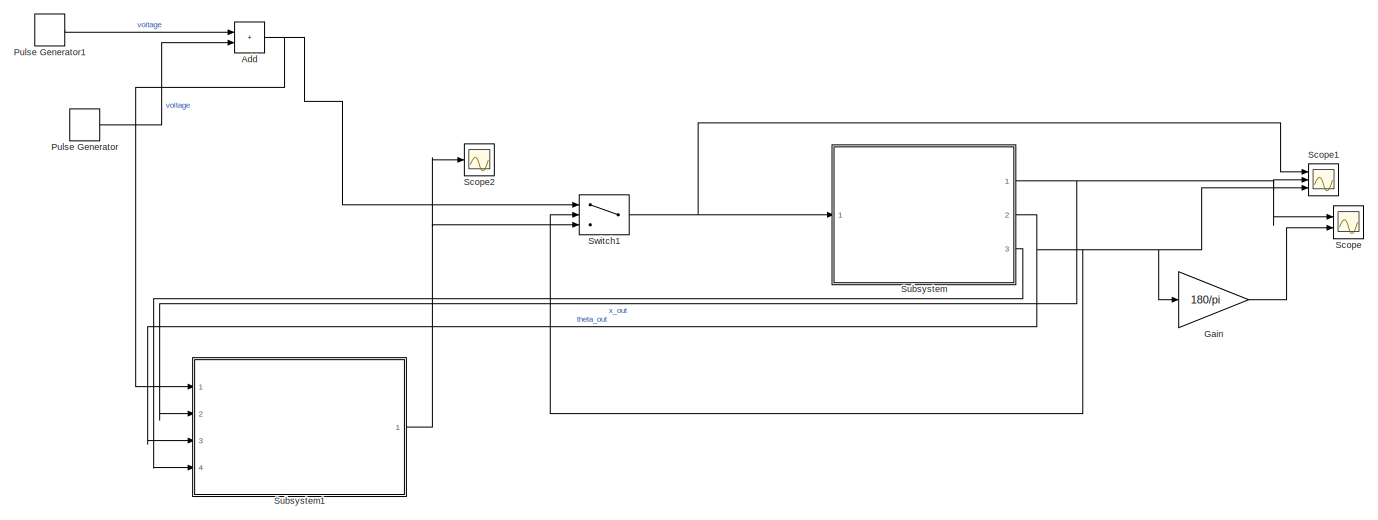
[diagram: root canvas - part 1/2, left side, full height]
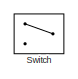
[diagram: root canvas - part 2/2, middle right region]
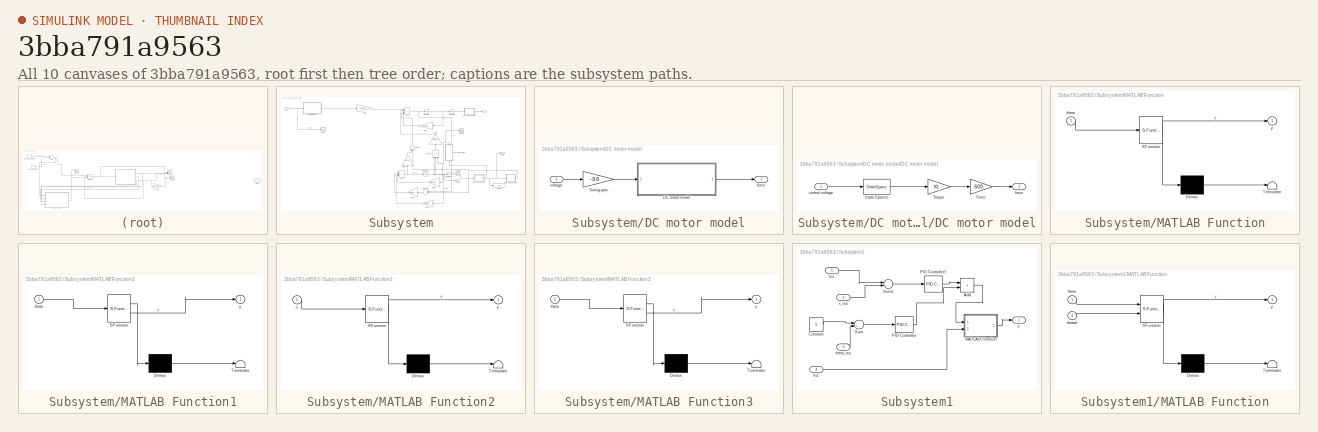
[diagram: thumbnail index - all 10 canvases of the model, root first then tree order]
MODEL slx_3bba791a9563
KIND model
CONFIG AbsTol = auto
CONFIG EnableMultiTasking = off
CONFIG FixedStep = auto
CONFIG MaxStep = auto
CONFIG MinStep = auto
CONFIG RelTol = 1e-3
CONFIG SampleTimeConstraint = Unconstrained
CONFIG Solver = VariableStepAuto
CONFIG SolverName = VariableStepAuto
CONFIG StartTime = 0.0
CONFIG StopTime = 10
BLOCK [Sum] Add
  IconShape = rectangular
  Ports = [2, 1]
BLOCK [Gain] Gain
  Gain = 180/pi
BLOCK [DiscretePulseGenerator] Pulse Generator
  Amplitude = 14.5
  Period = 35
  Ports = [0, 1]
  PulseType = Time based
  PulseWidth = 0.1245
  SampleTime = 2
BLOCK [DiscretePulseGenerator] Pulse Generator1
  Amplitude = -14.5
  Period = 35
  PhaseDelay = 1.5
  Ports = [0, 1]
  PulseType = Time based
  PulseWidth = 0.1245
  SampleTime = 2
BLOCK [Scope] Scope
  Floating = off
  NumInputPorts = 2
  Ports = [2]
  ScopeSpecificationString = Simulink.scopes.TimeScopeBlockCfg('CurrentConfiguration', extmgr.ConfigurationSet(extmgr.Configuration('Core','General UI',true),extmgr.Configuration('Core','Source UI',true),extmgr.Configuration('Sources','WiredSimulink',true),extmgr.Configuration('Visuals','Time Domain',true,'SerializedDisplays',{struct('MinYLimReal','-0.3375','MaxYLimReal','0.0375','YLabelReal','','MinYLimMag','0.00000','MaxYLi...<+2115ch>
BLOCK [Scope] Scope1
  Floating = off
  NumInputPorts = 3
  Ports = [3]
  ScopeSpecificationString = Simulink.scopes.TimeScopeBlockCfg('CurrentConfiguration', extmgr.ConfigurationSet(extmgr.Configuration('Core','General UI',true),extmgr.Configuration('Core','Source UI',true),extmgr.Configuration('Sources','WiredSimulink',true,'DataLoggingVariableName','ScopeData2'),extmgr.Configuration('Visuals','Time Domain',true,'SerializedDisplays',{struct('MinYLimReal','-2483.62329','MaxYLimReal','22349.60963...<+1539ch>
BLOCK [Scope] Scope2
  Floating = off
  NumInputPorts = 1
  Ports = [1]
  ScopeSpecificationString = Simulink.scopes.TimeScopeBlockCfg('CurrentConfiguration', extmgr.ConfigurationSet(extmgr.Configuration('Core','General UI',true),extmgr.Configuration('Core','Source UI',true),extmgr.Configuration('Sources','WiredSimulink',true,'DataLoggingVariableName','ScopeData2'),extmgr.Configuration('Visuals','Time Domain',true,'SerializedDisplays',{struct('MinYLimReal','-71194.22995','MaxYLimReal','640748.069...<+1534ch>
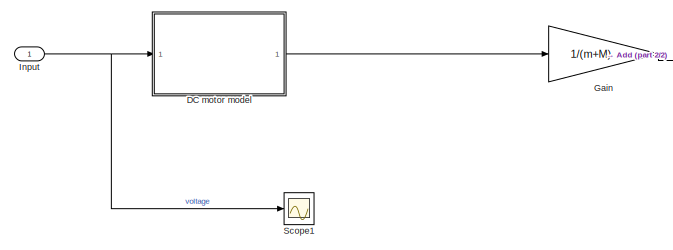
[diagram: Subsystem - part 1/2, top left region]
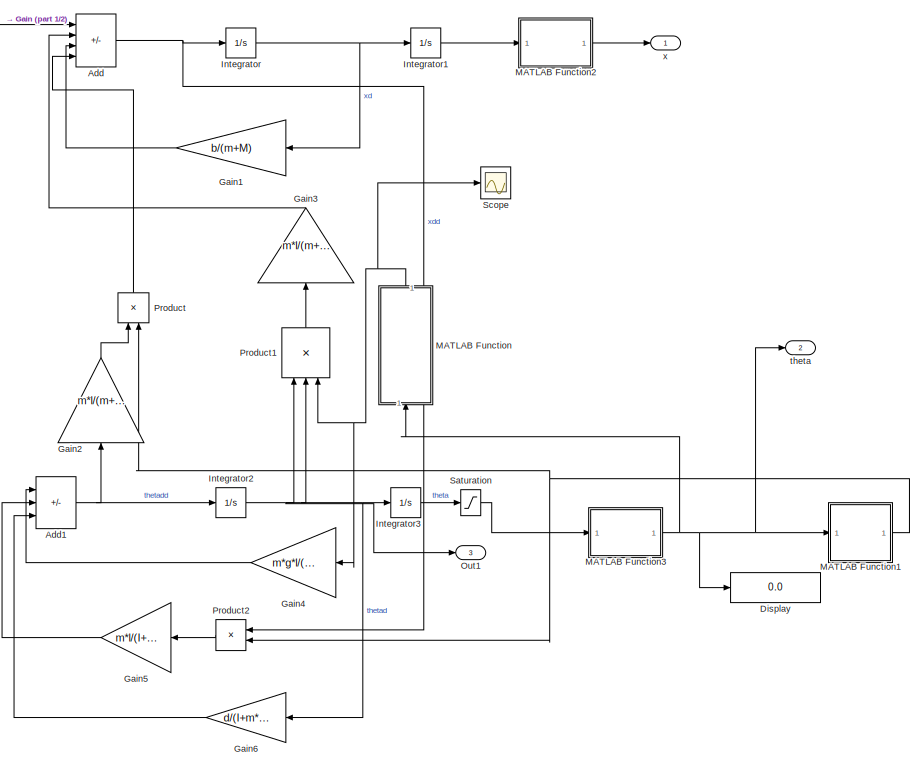
[diagram: Subsystem - part 2/2, right side, full height]
BLOCK [SubSystem] Subsystem
  Ports = [1, 3]
BLOCK [Sum] Subsystem/Add
  IconShape = rectangular
  Inputs = ++--
  Ports = [4, 1]
BLOCK [Sum] Subsystem/Add1
  IconShape = rectangular
  Inputs = +--
  Ports = [3, 1]
BLOCK [SubSystem] Subsystem/DC motor model
  Ports = [1, 1]
BLOCK [SubSystem] Subsystem/DC motor model/DC motor model
  Ports = [1, 1]
BLOCK [Gain] Subsystem/DC motor model/DC motor model/Force
  Gain = 600
BLOCK [StateSpace] Subsystem/DC motor model/DC motor model/State-Space1
  A = [-d/J Kt/J;-Kb/L -R/L]
  B = [0; 1/L]
  C = [0 1]
  D = 0
  InitialCondition = 0
  Ports = [1, 1]
BLOCK [Gain] Subsystem/DC motor model/DC motor model/Torque
  Gain = Kt
BLOCK [Inport] Subsystem/DC motor model/DC motor model/control voltage
BLOCK [Outport] Subsystem/DC motor model/DC motor model/force
BLOCK [Gain] Subsystem/DC motor model/Tuning gain
  Gain = -9.6
BLOCK [Outport] Subsystem/DC motor model/force
BLOCK [Inport] Subsystem/DC motor model/voltage
BLOCK [Display] Subsystem/Display
  Decimation = 1
  Ports = [1]
BLOCK [Gain] Subsystem/Gain
  Gain = 1/(m+M)
BLOCK [Gain] Subsystem/Gain1
  Gain = b/(m+M)
BLOCK [Gain] Subsystem/Gain2
  Gain = m*l/(m+M)
BLOCK [Gain] Subsystem/Gain3
  Gain = m*l/(m+M)
BLOCK [Gain] Subsystem/Gain4
  Gain = m*g*l/(I+m*l*l)
BLOCK [Gain] Subsystem/Gain5
  Gain = m*l/(I+m*l*l)
BLOCK [Gain] Subsystem/Gain6
  Gain = d/(I+m*l*l)
BLOCK [Inport] Subsystem/Input
BLOCK [Integrator] Subsystem/Integrator
  Ports = [1, 1]
BLOCK [Integrator] Subsystem/Integrator1
  Ports = [1, 1]
BLOCK [Integrator] Subsystem/Integrator2
  Ports = [1, 1]
BLOCK [Integrator] Subsystem/Integrator3
  InitialCondition = pi
  Ports = [1, 1]
BLOCK [SubSystem] Subsystem/MATLAB Function
  ErrorFcn = Stateflow.Translate.translate
  PermitHierarchicalResolution = ExplicitOnly
  Ports = [1, 1]
  SFBlockType = MATLAB Function
  TreatAsAtomicUnit = on
BLOCK [Demux] Subsystem/MATLAB Function/ Demux 
  Outputs = 1
  Ports = [1, 1]
BLOCK [S-Function] Subsystem/MATLAB Function/ SFunction 
  EnableBusSupport = on
  FunctionName = sf_sfun
  PortCounts = [1 2]
  Ports = [1, 2]
  SFcnIsStateOwnerBlock = off
  SFunctionDeploymentMode = off
  Tag = Stateflow S-Function A2_22AE30019 3
BLOCK [Terminator] Subsystem/MATLAB Function/ Terminator 
BLOCK [Inport] Subsystem/MATLAB Function/theta
BLOCK [Outport] Subsystem/MATLAB Function/y
BLOCK [SubSystem] Subsystem/MATLAB Function1
  ErrorFcn = Stateflow.Translate.translate
  PermitHierarchicalResolution = ExplicitOnly
  Ports = [1, 1]
  SFBlockType = MATLAB Function
  TreatAsAtomicUnit = on
BLOCK [Demux] Subsystem/MATLAB Function1/ Demux 
  Outputs = 1
  Ports = [1, 1]
BLOCK [S-Function] Subsystem/MATLAB Function1/ SFunction 
  EnableBusSupport = on
  FunctionName = sf_sfun
  PortCounts = [1 2]
  Ports = [1, 2]
  SFcnIsStateOwnerBlock = off
  SFunctionDeploymentMode = off
  Tag = Stateflow S-Function A2_22AE30019 4
BLOCK [Terminator] Subsystem/MATLAB Function1/ Terminator 
BLOCK [Inport] Subsystem/MATLAB Function1/theta
BLOCK [Outport] Subsystem/MATLAB Function1/y
BLOCK [SubSystem] Subsystem/MATLAB Function2
  ErrorFcn = Stateflow.Translate.translate
  PermitHierarchicalResolution = ExplicitOnly
  Ports = [1, 1]
  SFBlockType = MATLAB Function
  TreatAsAtomicUnit = on
BLOCK [Demux] Subsystem/MATLAB Function2/ Demux 
  Outputs = 1
  Ports = [1, 1]
BLOCK [S-Function] Subsystem/MATLAB Function2/ SFunction 
  EnableBusSupport = on
  FunctionName = sf_sfun
  PortCounts = [1 2]
  Ports = [1, 2]
  SFcnIsStateOwnerBlock = off
  SFunctionDeploymentMode = off
  Tag = Stateflow S-Function A2_22AE30019 1
BLOCK [Terminator] Subsystem/MATLAB Function2/ Terminator 
BLOCK [Inport] Subsystem/MATLAB Function2/u
BLOCK [Outport] Subsystem/MATLAB Function2/y
BLOCK [SubSystem] Subsystem/MATLAB Function3
  ErrorFcn = Stateflow.Translate.translate
  PermitHierarchicalResolution = ExplicitOnly
  Ports = [1, 1]
  SFBlockType = MATLAB Function
  TreatAsAtomicUnit = on
BLOCK [Demux] Subsystem/MATLAB Function3/ Demux 
  Outputs = 1
  Ports = [1, 1]
BLOCK [S-Function] Subsystem/MATLAB Function3/ SFunction 
  EnableBusSupport = on
  FunctionName = sf_sfun
  PortCounts = [1 2]
  Ports = [1, 2]
  SFcnIsStateOwnerBlock = off
  SFunctionDeploymentMode = off
  Tag = Stateflow S-Function A2_22AE30019 5
BLOCK [Terminator] Subsystem/MATLAB Function3/ Terminator 
BLOCK [Inport] Subsystem/MATLAB Function3/theta
BLOCK [Outport] Subsystem/MATLAB Function3/y
BLOCK [Outport] Subsystem/Out1
  Port = 3
BLOCK [Product] Subsystem/Product
  Ports = [2, 1]
BLOCK [Product] Subsystem/Product1
  Inputs = 3
  Ports = [3, 1]
BLOCK [Product] Subsystem/Product2
  Ports = [2, 1]
BLOCK [Saturate] Subsystem/Saturation
  LowerLimit = 0
  UpperLimit = 2*pi
BLOCK [Scope] Subsystem/Scope
  Floating = off
  NumInputPorts = 1
  Ports = [1]
  ScopeSpecificationString = Simulink.scopes.TimeScopeBlockCfg('CurrentConfiguration', extmgr.ConfigurationSet(extmgr.Configuration('Core','General UI',true),extmgr.Configuration('Core','Source UI',true),extmgr.Configuration('Sources','WiredSimulink',true,'DataLoggingVariableName','ScopeData3'),extmgr.Configuration('Visuals','Time Domain',true,'SerializedDisplays',{struct('MinYLimReal','-1.24726','MaxYLimReal','1.23127','YLab...<+1505ch>
BLOCK [Scope] Subsystem/Scope1
  Floating = off
  NumInputPorts = 1
  Ports = [1]
  ScopeSpecificationString = Simulink.scopes.TimeScopeBlockCfg('CurrentConfiguration', extmgr.ConfigurationSet(extmgr.Configuration('Core','General UI',true),extmgr.Configuration('Core','Source UI',true),extmgr.Configuration('Sources','WiredSimulink',true,'DataLoggingVariableName','ScopeData1'),extmgr.Configuration('Visuals','Time Domain',true,'SerializedDisplays',{struct('MinYLimReal','-3.90735','MaxYLimReal','35.6459','YLab...<+1497ch>
BLOCK [Outport] Subsystem/theta
  Port = 2
BLOCK [Outport] Subsystem/x
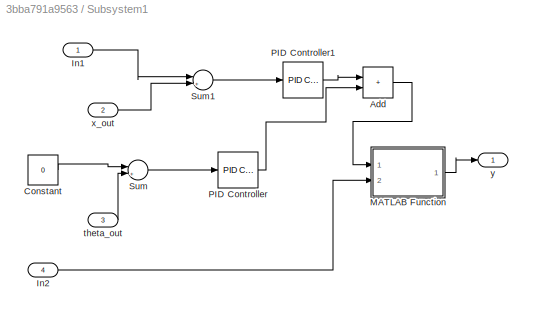
BLOCK [SubSystem] Subsystem1
  Ports = [4, 1]
BLOCK [Sum] Subsystem1/Add
  IconShape = rectangular
  Ports = [2, 1]
BLOCK [Constant] Subsystem1/Constant
  Value = 0
BLOCK [Inport] Subsystem1/In1
BLOCK [Inport] Subsystem1/In2
  Port = 4
BLOCK [SubSystem] Subsystem1/MATLAB Function
  ErrorFcn = Stateflow.Translate.translate
  PermitHierarchicalResolution = ExplicitOnly
  Ports = [2, 1]
  SFBlockType = MATLAB Function
  TreatAsAtomicUnit = on
BLOCK [Demux] Subsystem1/MATLAB Function/ Demux 
  Outputs = 1
  Ports = [1, 1]
BLOCK [S-Function] Subsystem1/MATLAB Function/ SFunction 
  EnableBusSupport = on
  FunctionName = sf_sfun
  PortCounts = [2 2]
  Ports = [2, 2]
  SFcnIsStateOwnerBlock = off
  SFunctionDeploymentMode = off
  Tag = Stateflow S-Function A2_22AE30019 2
BLOCK [Terminator] Subsystem1/MATLAB Function/ Terminator 
BLOCK [Inport] Subsystem1/MATLAB Function/theta
BLOCK [Inport] Subsystem1/MATLAB Function/thetad
  Port = 2
BLOCK [Outport] Subsystem1/MATLAB Function/y
BLOCK [Reference] Subsystem1/PID Controller  REF=simulink/Continuous/PID Controller
  Ports = [1, 1]
  SourceBlock = simulink/Continuous/PID Controller
  SourceType = PID 1dof
BLOCK [Reference] Subsystem1/PID Controller1  REF=simulink/Continuous/PID Controller
  Ports = [1, 1]
  SourceBlock = simulink/Continuous/PID Controller
  SourceType = PID 1dof
BLOCK [Sum] Subsystem1/Sum
  Inputs = |+-
  Ports = [2, 1]
BLOCK [Sum] Subsystem1/Sum1
  Inputs = |+-
  Ports = [2, 1]
BLOCK [Inport] Subsystem1/theta_out
  Port = 3
BLOCK [Inport] Subsystem1/x_out
  Port = 2
BLOCK [Outport] Subsystem1/y
BLOCK [Switch] Switch
  Criteria = u2 > Threshold
  InputSameDT = off
  SaturateOnIntegerOverflow = off
BLOCK [Switch] Switch1
  Criteria = u2 > Threshold
  InputSameDT = off
  SaturateOnIntegerOverflow = off
  Threshold = pi/18
NET Add:1 -> Subsystem1:1, Switch1:1
LINE Gain:1 -> Scope:2
LINE Pulse Generator1:1 -> Add:1
LINE Pulse Generator:1 -> Add:2
NET Subsystem/Add1:1 -> Subsystem/Gain2:1, Subsystem/Integrator2:1
NET Subsystem/Add:1 -> Subsystem/Integrator:1, Subsystem/Product2:1
LINE Subsystem/DC motor model/DC motor model/Force:1 -> Subsystem/DC motor model/DC motor model/force:1
LINE Subsystem/DC motor model/DC motor model/State-Space1:1 -> Subsystem/DC motor model/DC motor model/Torque:1
LINE Subsystem/DC motor model/DC motor model/Torque:1 -> Subsystem/DC motor model/DC motor model/Force:1
LINE Subsystem/DC motor model/DC motor model/control voltage:1 -> Subsystem/DC motor model/DC motor model/State-Space1:1
LINE Subsystem/DC motor model/DC motor model:1 -> Subsystem/DC motor model/force:1
LINE Subsystem/DC motor model/Tuning gain:1 -> Subsystem/DC motor model/DC motor model:1
LINE Subsystem/DC motor model/voltage:1 -> Subsystem/DC motor model/Tuning gain:1
LINE Subsystem/DC motor model:1 -> Subsystem/Gain:1
LINE Subsystem/Gain1:1 -> Subsystem/Add:3
LINE Subsystem/Gain2:1 -> Subsystem/Product:1
LINE Subsystem/Gain3:1 -> Subsystem/Add:2
LINE Subsystem/Gain4:1 -> Subsystem/Add1:1
LINE Subsystem/Gain5:1 -> Subsystem/Add1:2
LINE Subsystem/Gain6:1 -> Subsystem/Add1:3
LINE Subsystem/Gain:1 -> Subsystem/Add:1
NET Subsystem/Input:1 -> Subsystem/DC motor model:1, Subsystem/Scope1:1
LINE Subsystem/Integrator1:1 -> Subsystem/MATLAB Function2:1
NET Subsystem/Integrator2:1 -> Subsystem/Gain6:1, Subsystem/Integrator3:1, Subsystem/Out1:1, Subsystem/Product1:1, Subsystem/Product1:2
LINE Subsystem/Integrator3:1 -> Subsystem/Saturation:1
NET Subsystem/Integrator:1 -> Subsystem/Gain1:1, Subsystem/Integrator1:1
NET Subsystem/MATLAB Function1:1 -> Subsystem/Product2:2, Subsystem/Product:2
LINE Subsystem/MATLAB Function2:1 -> Subsystem/x:1
NET Subsystem/MATLAB Function3:1 -> Subsystem/Display:1, Subsystem/MATLAB Function1:1, Subsystem/MATLAB Function:1, Subsystem/theta:1
NET Subsystem/MATLAB Function:1 -> Subsystem/Gain4:1, Subsystem/Product1:3, Subsystem/Scope:1
LINE Subsystem/Product1:1 -> Subsystem/Gain3:1
LINE Subsystem/Product2:1 -> Subsystem/Gain5:1
LINE Subsystem/Product:1 -> Subsystem/Add:4
LINE Subsystem/Saturation:1 -> Subsystem/MATLAB Function3:1
LINE Subsystem1/Add:1 -> Subsystem1/MATLAB Function:1
LINE Subsystem1/Constant:1 -> Subsystem1/Sum:1
LINE Subsystem1/In1:1 -> Subsystem1/Sum1:1
LINE Subsystem1/In2:1 -> Subsystem1/MATLAB Function:2
LINE Subsystem1/MATLAB Function:1 -> Subsystem1/y:1
LINE Subsystem1/PID Controller1:1 -> Subsystem1/Add:1
LINE Subsystem1/PID Controller:1 -> Subsystem1/Add:2
LINE Subsystem1/Sum1:1 -> Subsystem1/PID Controller1:1
LINE Subsystem1/Sum:1 -> Subsystem1/PID Controller:1
LINE Subsystem1/theta_out:1 -> Subsystem1/Sum:2
LINE Subsystem1/x_out:1 -> Subsystem1/Sum1:2
NET Subsystem1:1 -> Scope2:1, Switch1:3
NET Subsystem:1 -> Scope1:2, Scope:1, Subsystem1:2
NET Subsystem:2 -> Gain:1, Scope1:3, Subsystem1:3, Switch1:2
LINE Subsystem:3 -> Subsystem1:4
NET Switch1:1 -> Scope1:1, Subsystem:1
note: NET lines group one-source signal fan-out (src -> all destinations, sorted); 1:1 wires keep LINE
CHART Subsystem/MATLAB Function2 states=1 transitions=1
  STATE_LABEL 'eML_blk_kernel()'
  STATE_LABEL 'SCRIPT:\nfunction y = fcn(u)\nif (u>0.3)\n    y=0.3;\nelseif (u<-0.3)\n    y=-0.3;\nelse\n    y = u;\nend'
CHART Subsystem1/MATLAB Function states=1 transitions=1
  STATE_LABEL 'eML_blk_kernel()'
  STATE_LABEL 'SCRIPT:\nfunction y = fcn(theta,thetad)\n    if theta < 0.17453\n        y = 0;\n        thetad = 0;\n    else\n        y = theta;     \n    end\nend\n'
CHART Subsystem/MATLAB Function states=1 transitions=1
  STATE_LABEL 'eML_blk_kernel()'
  STATE_LABEL 'SCRIPT:\n\nfunction y = fcn(theta)\n    if theta < 0.17453\n        y = theta;\n    else\n        y = sin(theta);\n    end\nend\n'
CHART Subsystem/MATLAB Function1 states=1 transitions=1
  STATE_LABEL 'eML_blk_kernel()'
  STATE_LABEL 'SCRIPT:\n\nfunction y = fcn(theta)\n    if theta < 0.17453\n        y = 1;\n    else\n        y = cos(theta);\n    end\nend\n'
CHART Subsystem/MATLAB Function3 states=1 transitions=1
  STATE_LABEL 'eML_blk_kernel()'
  STATE_LABEL 'SCRIPT:\nfunction y = fcn(theta)\n    if theta > 35*pi/180\n        y = 2*pi - theta;\n    else\n        y = theta;\n    end\nend\n'
